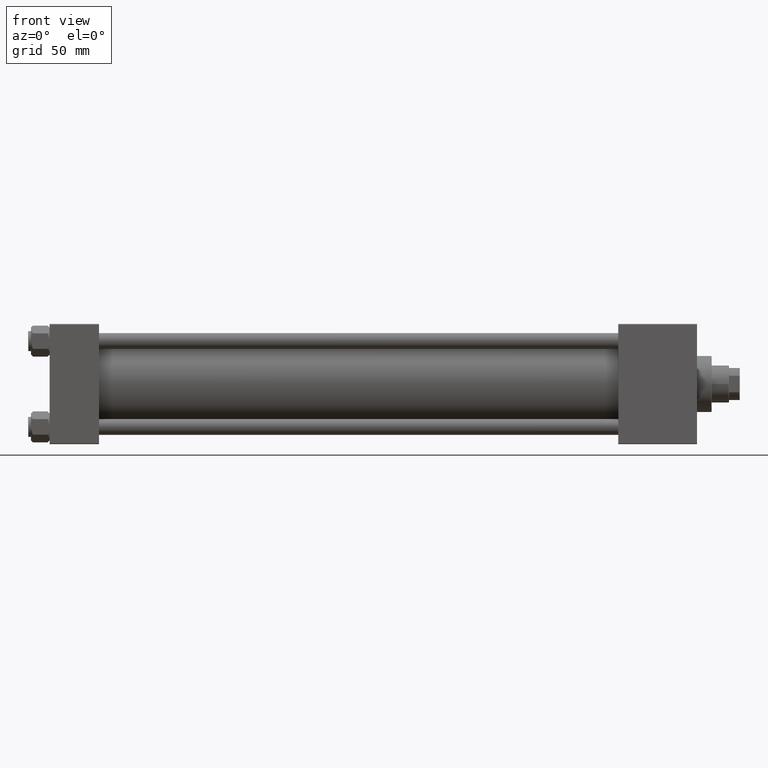
[diagram: clean part render]
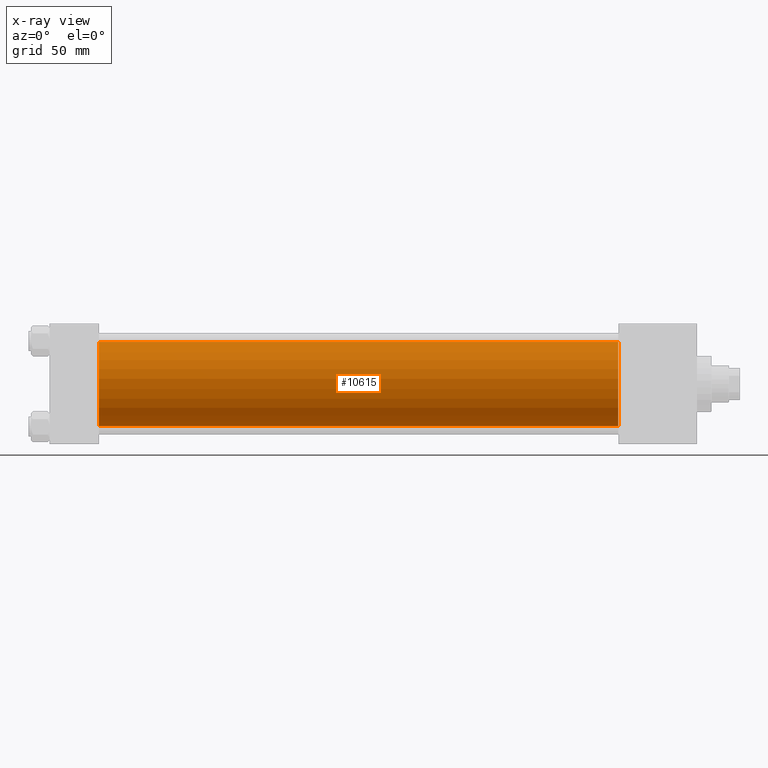
[diagram: x-ray — body ghosted, one internal face saturated and labeled with its STEP entity id]
A machine part, front view, then the same camera in x-ray: the body is ghosted and one INTERNAL B-rep face — a face not visible from any outside direction — is saturated and labeled: STEP entity #10615.
In plain terms, the highlighted cylindrical surface (partial cylindrical patch) has radius 31.5 mm, axis along (-1, -0, -0).
Its self-contained STEP definition (entity closure, byte-faithful):
#717 = VERTEX_POINT ( 'NONE', #17584 ) ;
#1961 = CARTESIAN_POINT ( 'NONE',  ( 426.0000000000000000, -2.602085213965210642E-15, 31.50000000000000000 ) ) ;
#2506 = EDGE_CURVE ( 'NONE', #9181, #717, #41410, .T. ) ;
#4240 = CARTESIAN_POINT ( 'NONE',  ( 426.0000000000000000, -2.602085213965210642E-15, 31.50000000000000000 ) ) ;
#4304 = DIRECTION ( 'NONE',  ( 1.000000000000000000, 0.000000000000000000, 0.000000000000000000 ) ) ;
#5089 = DIRECTION ( 'NONE',  ( 1.000000000000000000, 0.000000000000000000, 0.000000000000000000 ) ) ;
#7111 = AXIS2_PLACEMENT_3D ( 'NONE', #12192, #4304, #8382 ) ;
#7243 = ORIENTED_EDGE ( 'NONE', *, *, #26044, .F. ) ;
#8298 = EDGE_CURVE ( 'NONE', #47785, #23814, #9600, .T. ) ;
#8382 = DIRECTION ( 'NONE',  ( 0.000000000000000000, 0.000000000000000000, -1.000000000000000000 ) ) ;
#9181 = VERTEX_POINT ( 'NONE', #4240 ) ;
#9600 = LINE ( 'NONE', #28681, #15491 ) ;
#9849 = DIRECTION ( 'NONE',  ( -1.000000000000000000, -0.000000000000000000, -0.000000000000000000 ) ) ;
#10615 = ADVANCED_FACE ( 'NONE', ( #43264 ), #31545, .F. ) ;
#12192 = CARTESIAN_POINT ( 'NONE',  ( 37.00000000000000000, -2.602085213965210642E-15, 0.000000000000000000 ) ) ;
#13058 = AXIS2_PLACEMENT_3D ( 'NONE', #36125, #5089, #40211 ) ;
#15491 = VECTOR ( 'NONE', #24617, 1000.000000000000000 ) ;
#17584 = CARTESIAN_POINT ( 'NONE',  ( 37.00000000000000000, -2.602085213965210642E-15, 31.50000000000000000 ) ) ;
#19592 = DIRECTION ( 'NONE',  ( 0.000000000000000000, 0.000000000000000000, 1.000000000000000000 ) ) ;
#22152 = CARTESIAN_POINT ( 'NONE',  ( 37.00000000000000000, 1.255552203348951850E-15, -31.50000000000000000 ) ) ;
#23814 = VERTEX_POINT ( 'NONE', #22152 ) ;
#24617 = DIRECTION ( 'NONE',  ( -1.000000000000000000, -0.000000000000000000, -0.000000000000000000 ) ) ;
#26044 = EDGE_CURVE ( 'NONE', #717, #23814, #37977, .T. ) ;
#26734 = CARTESIAN_POINT ( 'NONE',  ( 426.0000000000000000, -2.602085213965210642E-15, 0.000000000000000000 ) ) ;
#27611 = VECTOR ( 'NONE', #9849, 1000.000000000000000 ) ;
#28681 = CARTESIAN_POINT ( 'NONE',  ( 426.0000000000000000, 1.255552203348951850E-15, -31.50000000000000000 ) ) ;
#31545 = CYLINDRICAL_SURFACE ( 'NONE', #45649, 31.50000000000000000 ) ;
#31797 = DIRECTION ( 'NONE',  ( -1.000000000000000000, -0.000000000000000000, -0.000000000000000000 ) ) ;
#32550 = CIRCLE ( 'NONE', #13058, 31.50000000000000000 ) ;
#36125 = CARTESIAN_POINT ( 'NONE',  ( 426.0000000000000000, -2.602085213965210642E-15, 0.000000000000000000 ) ) ;
#37977 = CIRCLE ( 'NONE', #7111, 31.50000000000000000 ) ;
#38730 = ORIENTED_EDGE ( 'NONE', *, *, #40327, .T. ) ;
#40211 = DIRECTION ( 'NONE',  ( 0.000000000000000000, 0.000000000000000000, -1.000000000000000000 ) ) ;
#40327 = EDGE_CURVE ( 'NONE', #9181, #47785, #32550, .T. ) ;
#41410 = LINE ( 'NONE', #1961, #27611 ) ;
#43264 = FACE_OUTER_BOUND ( 'NONE', #46368, .T. ) ;
#45649 = AXIS2_PLACEMENT_3D ( 'NONE', #26734, #31797, #19592 ) ;
#45774 = ORIENTED_EDGE ( 'NONE', *, *, #8298, .T. ) ;
#46115 = ORIENTED_EDGE ( 'NONE', *, *, #2506, .F. ) ;
#46368 = EDGE_LOOP ( 'NONE', ( #38730, #45774, #7243, #46115 ) ) ;
#47785 = VERTEX_POINT ( 'NONE', #49817 ) ;
#49817 = CARTESIAN_POINT ( 'NONE',  ( 426.0000000000000000, 1.255552203348951850E-15, -31.50000000000000000 ) ) ;